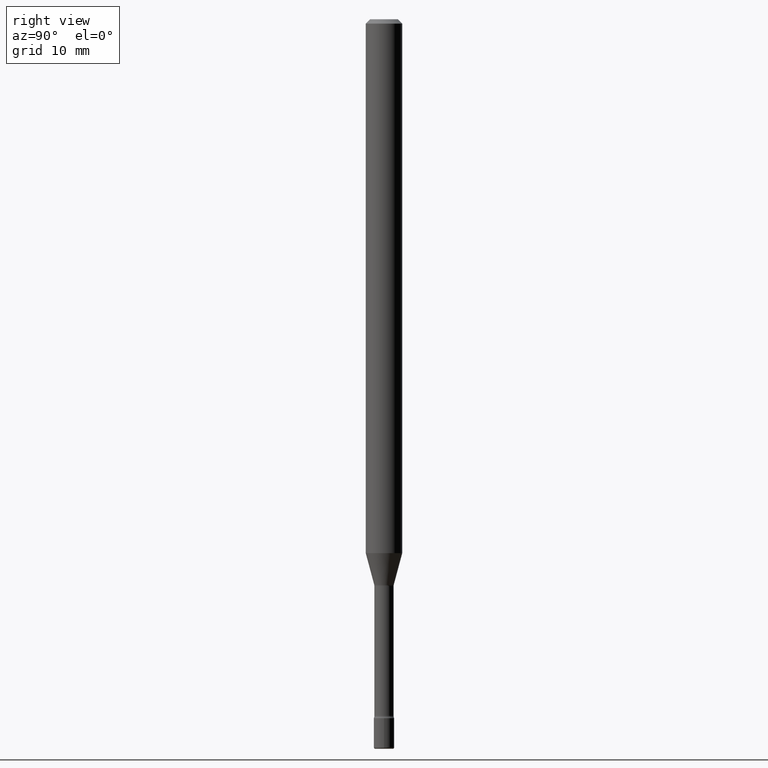
[diagram: clean part render]
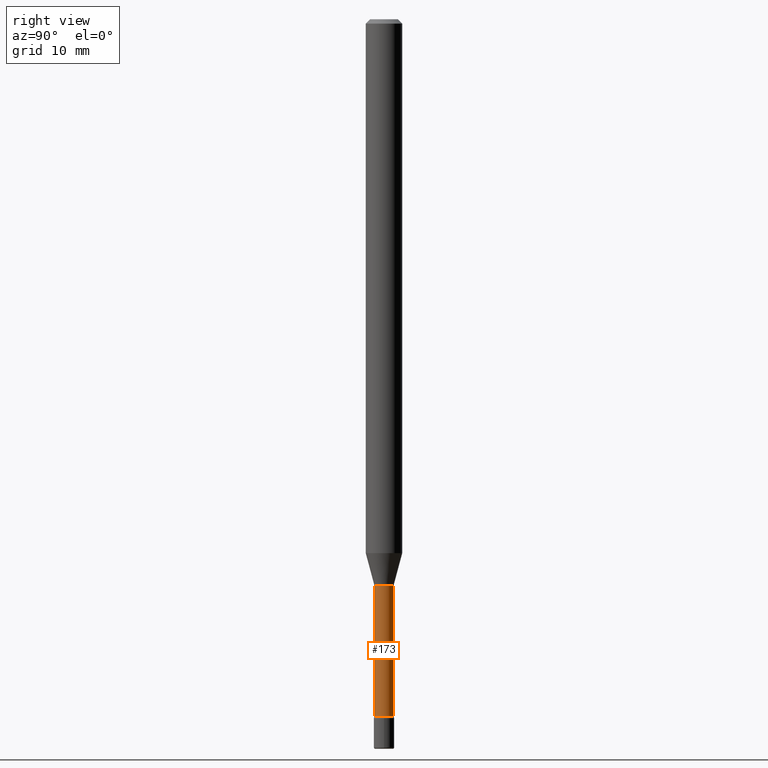
[diagram: same view with one face highlighted and labeled with its STEP entity id]
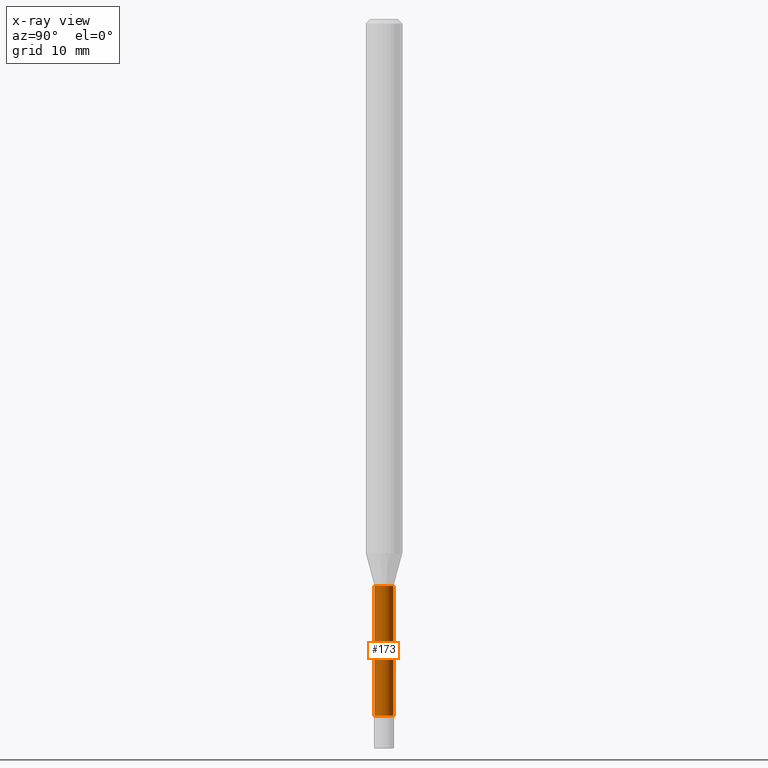
[diagram: x-ray of the same camera — body ghosted, the highlighted face saturated]
A machine part, right view. The second image highlights one B-rep face of the part: STEP entity #173.
The next image is the same camera in x-ray: the body ghosted, the highlighted face saturated — about 0% of this face is hidden behind the body in this view.
In plain terms, the highlighted cylindrical surface (edge-blend (fillet) strip) has radius 0.8357 mm, axis along (-0, 0, 1).
Its self-contained STEP definition (entity closure, byte-faithful):
#10 = DIRECTION ( 'NONE',  ( -2.445361929537154917E-29, 3.491634392286096321E-15, 1.000000000000000000 ) ) ;
#11 = VECTOR ( 'NONE', #10, 39.37007874015748143 ) ;
#12 = EDGE_CURVE ( 'NONE', #503, #272, #79, .T. ) ;
#45 = CIRCLE ( 'NONE', #445, 0.03289999999999999869 ) ;
#79 = CIRCLE ( 'NONE', #101, 0.03290000000000008890 ) ;
#86 = DIRECTION ( 'NONE',  ( -2.445361929537154917E-29, 3.491634392286096321E-15, 1.000000000000000000 ) ) ;
#101 = AXIS2_PLACEMENT_3D ( 'NONE', #451, #189, #449 ) ;
#109 = VERTEX_POINT ( 'NONE', #478 ) ;
#112 = VERTEX_POINT ( 'NONE', #140 ) ;
#137 = EDGE_CURVE ( 'NONE', #109, #112, #45, .T. ) ;
#140 = CARTESIAN_POINT ( 'NONE',  ( 2.337685600651315248E-16, 0.03289999999999321245, -1.941974787463811136 ) ) ;
#160 = EDGE_LOOP ( 'NONE', ( #516, #405, #420, #195 ) ) ;
#173 = ADVANCED_FACE ( 'NONE', ( #425 ), #472, .T. ) ;
#189 = DIRECTION ( 'NONE',  ( -2.445361929537154917E-29, 3.491634392286096321E-15, 1.000000000000000000 ) ) ;
#195 = ORIENTED_EDGE ( 'NONE', *, *, #297, .F. ) ;
#200 = CARTESIAN_POINT ( 'NONE',  ( 2.337685600650732477E-16, 0.03290000000000004726, 3.631986273850333500E-16 ) ) ;
#218 = CARTESIAN_POINT ( 'NONE',  ( -1.169113584055446105E-44, 1.669184350826100908E-30, 4.780733988912460139E-16 ) ) ;
#272 = VERTEX_POINT ( 'NONE', #441 ) ;
#285 = VECTOR ( 'NONE', #366, 39.37007874015748143 ) ;
#296 = CARTESIAN_POINT ( 'NONE',  ( 4.748831213385011578E-29, -6.780665956861124561E-15, -1.941974787463811136 ) ) ;
#297 = EDGE_CURVE ( 'NONE', #503, #109, #535, .T. ) ;
#308 = DIRECTION ( 'NONE',  ( -6.982962677686265133E-15, -1.000000000000000000, 0.000000000000000000 ) ) ;
#365 = AXIS2_PLACEMENT_3D ( 'NONE', #218, #86, #571 ) ;
#366 = DIRECTION ( 'NONE',  ( -2.445361929537154917E-29, 3.491634392286096321E-15, 1.000000000000000000 ) ) ;
#369 = CARTESIAN_POINT ( 'NONE',  ( -2.297394720958204179E-16, -0.03290000000000842945, -2.387345589506696619 ) ) ;
#405 = ORIENTED_EDGE ( 'NONE', *, *, #435, .T. ) ;
#420 = ORIENTED_EDGE ( 'NONE', *, *, #137, .F. ) ;
#425 = FACE_OUTER_BOUND ( 'NONE', #160, .T. ) ;
#429 = DIRECTION ( 'NONE',  ( -2.445361929537154917E-29, 3.491634392286096321E-15, 1.000000000000000000 ) ) ;
#435 = EDGE_CURVE ( 'NONE', #272, #112, #465, .T. ) ;
#441 = CARTESIAN_POINT ( 'NONE',  ( 2.412292587906125932E-16, 0.03289999999999175528, -2.387345589506696619 ) ) ;
#445 = AXIS2_PLACEMENT_3D ( 'NONE', #296, #429, #308 ) ;
#449 = DIRECTION ( 'NONE',  ( -6.982962677686266711E-15, -1.000000000000000000, 0.000000000000000000 ) ) ;
#451 = CARTESIAN_POINT ( 'NONE',  ( 5.837924017228111976E-29, -8.335737966594106856E-15, -2.387345589506696619 ) ) ;
#465 = LINE ( 'NONE', #200, #285 ) ;
#472 = CYLINDRICAL_SURFACE ( 'NONE', #365, 0.03290000000000004726 ) ;
#478 = CARTESIAN_POINT ( 'NONE',  ( -2.297394720958306238E-16, -0.03290000000000677799, -1.941974787463811136 ) ) ;
#503 = VERTEX_POINT ( 'NONE', #369 ) ;
#516 = ORIENTED_EDGE ( 'NONE', *, *, #12, .T. ) ;
#535 = LINE ( 'NONE', #537, #11 ) ;
#537 = CARTESIAN_POINT ( 'NONE',  ( -2.297394720958784485E-16, -0.03290000000000004726, 5.929481703974587272E-16 ) ) ;
#571 = DIRECTION ( 'NONE',  ( -6.982962677686265133E-15, -1.000000000000000000, 3.491634392286094348E-15 ) ) ;